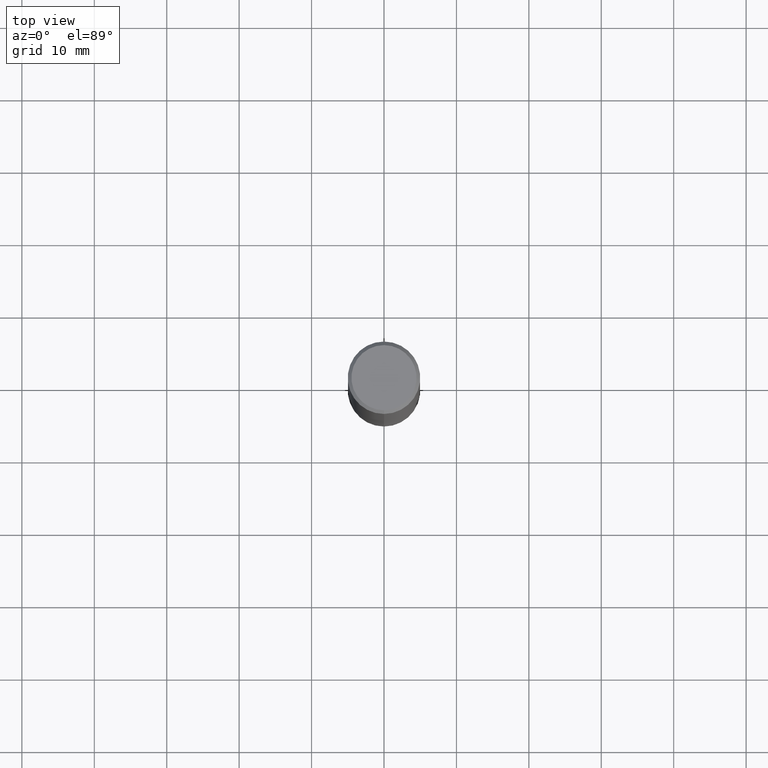
[diagram: clean part render]
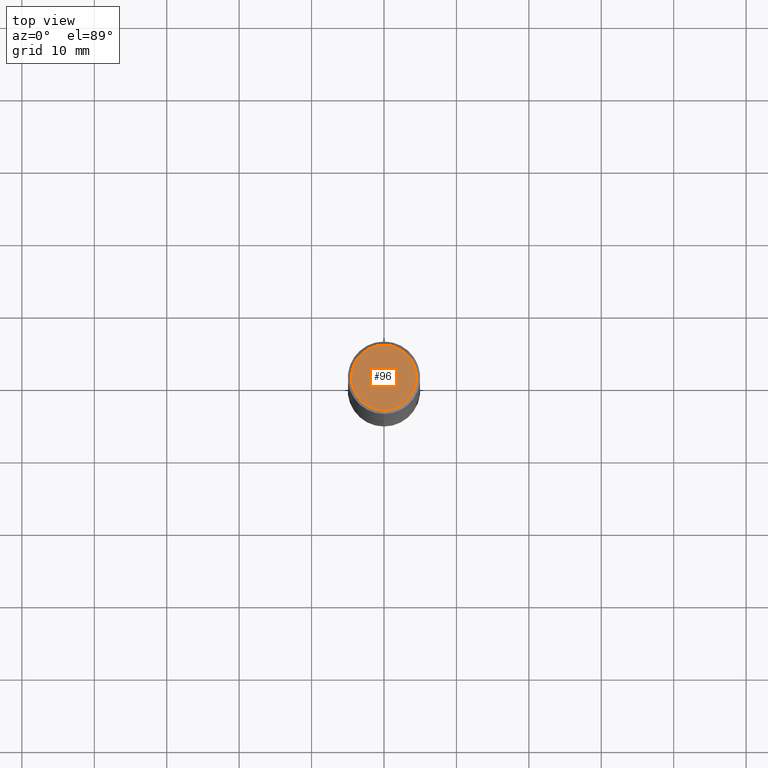
[diagram: same view with one face highlighted and labeled with its STEP entity id]
A machine part, top view. The second image highlights one B-rep face of the part: STEP entity #96.
In plain terms, the highlighted planar face has unit normal (-0, 0, 1).
Its self-contained STEP definition (entity closure, byte-faithful):
#96=ADVANCED_FACE('',(#241),#242,.T.);
#102=EDGE_CURVE('',#158,#194,#249,.T.);
#158=VERTEX_POINT('',#314);
#190=EDGE_CURVE('',#194,#158,#351,.T.);
#194=VERTEX_POINT('',#355);
#241=FACE_OUTER_BOUND('',#396,.T.);
#242=PLANE('',#397);
#249=CIRCLE('',#406,4.5);
#314=CARTESIAN_POINT('',(5.5107285922007E-016,-4.5,0.0));
#351=CIRCLE('',#527,4.5);
#355=CARTESIAN_POINT('',(0.0,4.5,0.0));
#396=EDGE_LOOP('',(#577,#578));
#397=AXIS2_PLACEMENT_3D('',#579,#580,#581);
#406=AXIS2_PLACEMENT_3D('',#593,#594,#595);
#527=AXIS2_PLACEMENT_3D('',#721,#722,#723);
#577=ORIENTED_EDGE('',*,*,#190,.F.);
#578=ORIENTED_EDGE('',*,*,#102,.F.);
#579=CARTESIAN_POINT('',(0.0,2.25,0.0));
#580=DIRECTION('',(-0.0,0.0,1.0));
#581=DIRECTION('',(0.0,-1.0,0.0));
#593=CARTESIAN_POINT('',(0.0,0.0,0.0));
#594=DIRECTION('',(0.0,0.0,-1.0));
#595=DIRECTION('',(0.0,1.0,0.0));
#721=CARTESIAN_POINT('',(0.0,0.0,0.0));
#722=DIRECTION('',(0.0,0.0,-1.0));
#723=DIRECTION('',(0.0,1.0,0.0));